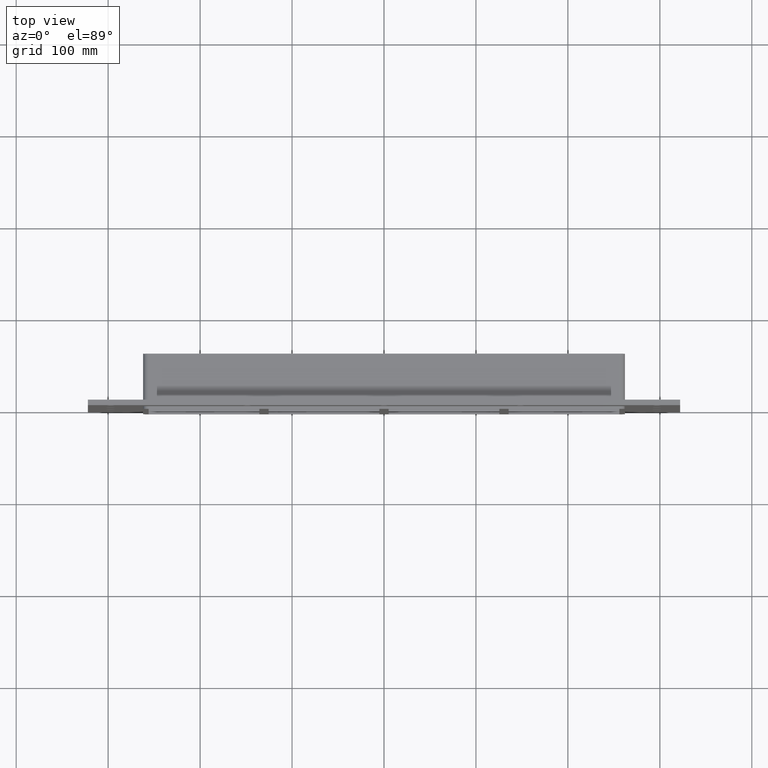
[diagram: clean part render]
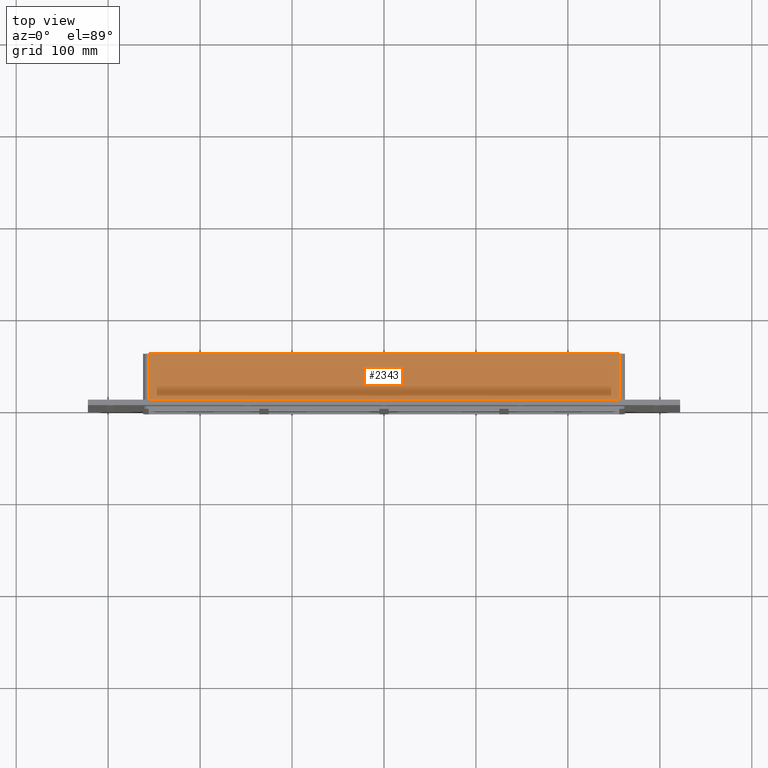
[diagram: same view with one face highlighted and labeled with its STEP entity id]
A machine part, top view. The second image highlights one B-rep face of the part: STEP entity #2343.
In plain terms, the highlighted planar face has unit normal (0, 0, 1).
Its self-contained STEP definition (entity closure, byte-faithful):
#1210=CARTESIAN_POINT('',(-256.0,57.0,171.50000000000003));
#1211=VERTEX_POINT('',#1210);
#1219=CARTESIAN_POINT('',(256.0,57.0,171.50000000000003));
#1220=VERTEX_POINT('',#1219);
#1221=CARTESIAN_POINT('',(-256.0,57.0,171.50000000000003));
#1222=DIRECTION('',(1.0,0.0,0.0));
#1223=VECTOR('',#1222,512.0);
#1224=LINE('',#1221,#1223);
#1225=EDGE_CURVE('',#1211,#1220,#1224,.T.);
#1805=CARTESIAN_POINT('',(256.0,6.000000000000001,171.50000000000003));
#1806=VERTEX_POINT('',#1805);
#1814=CARTESIAN_POINT('',(-256.0,6.000000000000001,171.50000000000003));
#1815=VERTEX_POINT('',#1814);
#1816=CARTESIAN_POINT('',(-256.0,6.000000000000001,171.50000000000003));
#1817=DIRECTION('',(1.0,0.0,0.0));
#1818=VECTOR('',#1817,512.0);
#1819=LINE('',#1816,#1818);
#1820=EDGE_CURVE('',#1815,#1806,#1819,.T.);
#2107=CARTESIAN_POINT('',(256.0,57.0,171.50000000000003));
#2108=DIRECTION('',(0.0,-1.0,0.0));
#2109=VECTOR('',#2108,51.0);
#2110=LINE('',#2107,#2109);
#2111=EDGE_CURVE('',#1220,#1806,#2110,.T.);
#2321=CARTESIAN_POINT('',(-256.0,6.000000000000001,171.50000000000003));
#2322=DIRECTION('',(0.0,1.0,0.0));
#2323=VECTOR('',#2322,51.0);
#2324=LINE('',#2321,#2323);
#2325=EDGE_CURVE('',#1815,#1211,#2324,.T.);
#2332=CARTESIAN_POINT('',(-262.0,0.0,171.50000000000003));
#2333=DIRECTION('',(0.0,0.0,1.0));
#2334=DIRECTION('',(1.0,0.0,0.0));
#2335=AXIS2_PLACEMENT_3D('',#2332,#2333,#2334);
#2336=PLANE('',#2335);
#2337=ORIENTED_EDGE('',*,*,#1820,.T.);
#2338=ORIENTED_EDGE('',*,*,#2111,.F.);
#2339=ORIENTED_EDGE('',*,*,#1225,.F.);
#2340=ORIENTED_EDGE('',*,*,#2325,.F.);
#2341=EDGE_LOOP('',(#2337,#2338,#2339,#2340));
#2342=FACE_OUTER_BOUND('',#2341,.T.);
#2343=ADVANCED_FACE('',(#2342),#2336,.T.);